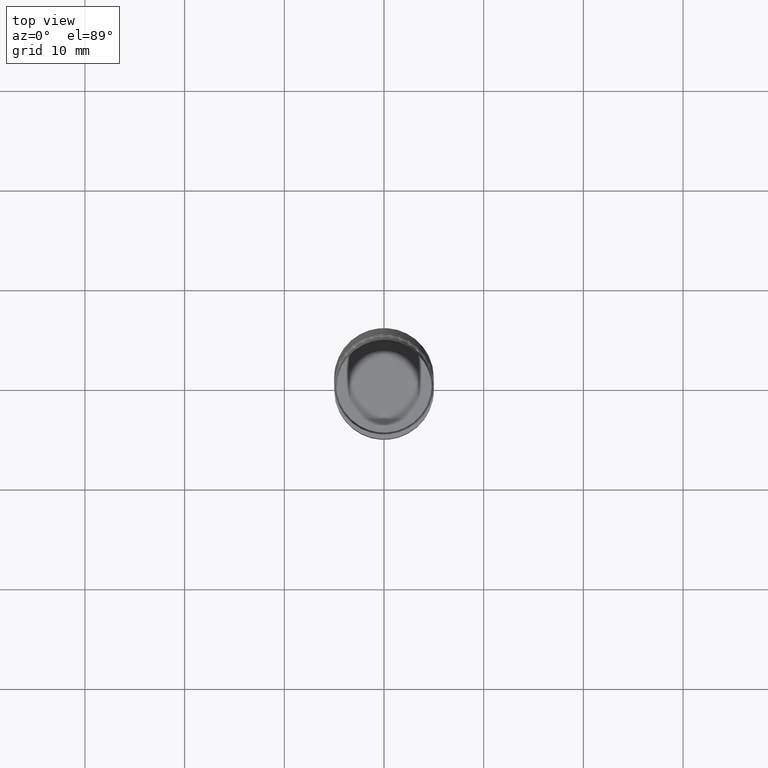
[diagram: clean part render]
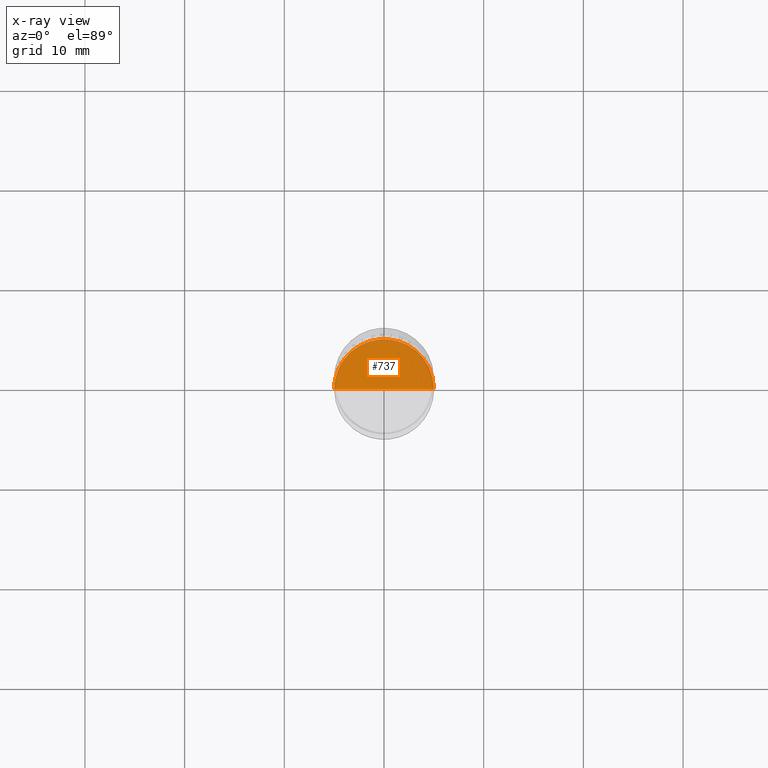
[diagram: x-ray — body ghosted, one internal face saturated and labeled with its STEP entity id]
A machine part, top view, then the same camera in x-ray: the body is ghosted and one INTERNAL B-rep face — a face not visible from any outside direction — is saturated and labeled: STEP entity #737.
In plain terms, the highlighted face is a freeform B-spline surface patch.
Its self-contained STEP definition (entity closure, byte-faithful):
#494=CARTESIAN_POINT('',(5.0,0.0,-26.746410161514));
#495=CARTESIAN_POINT('',(5.0,5.0,-26.746410161514));
#496=CARTESIAN_POINT('',(0.0,5.0,-26.746410161514));
#497=CARTESIAN_POINT('',(-5.0,5.0,-26.746410161514));
#498=CARTESIAN_POINT('',(-5.0,0.0,-26.746410161514));
#499=CARTESIAN_POINT('',(0.0,0.0,-26.746410161514));
#722=(
BOUNDED_SURFACE()
B_SPLINE_SURFACE(1,2,(
(#499,#499,#499,#499,#499),
(#494,#495,#496,#497,#498)
), .UNSPECIFIED.,.F.,.F.,.F.)
B_SPLINE_SURFACE_WITH_KNOTS((2,2),(3,2,3),(
0.0,1.0),(
0.0,0.5,1.0), .UNSPECIFIED.)
GEOMETRIC_REPRESENTATION_ITEM()
RATIONAL_B_SPLINE_SURFACE(((1.0,0.707106781187,1.0,0.707106781187,1.0),
(1.0,0.707106781187,1.0,0.707106781187,1.0)
))
REPRESENTATION_ITEM('')
SURFACE()
);
#723=(
BOUNDED_CURVE()
B_SPLINE_CURVE(1,(#498,#499),.UNSPECIFIED.,.F.,.F.)
B_SPLINE_CURVE_WITH_KNOTS((2,2),
(0.0,1.0),.UNSPECIFIED.)
CURVE()
GEOMETRIC_REPRESENTATION_ITEM()
RATIONAL_B_SPLINE_CURVE((1.0,1.0))
REPRESENTATION_ITEM('')
);
#724=(
BOUNDED_CURVE()
B_SPLINE_CURVE(1,(#499,#494),.UNSPECIFIED.,.F.,.F.)
B_SPLINE_CURVE_WITH_KNOTS((2,2),
(0.0,1.0),.UNSPECIFIED.)
CURVE()
GEOMETRIC_REPRESENTATION_ITEM()
RATIONAL_B_SPLINE_CURVE((1.0,1.0))
REPRESENTATION_ITEM('')
);
#725=(
BOUNDED_CURVE()
B_SPLINE_CURVE(2,(#494,#495,#496,#497,#498),.UNSPECIFIED.,.F.,.F.)
B_SPLINE_CURVE_WITH_KNOTS((3,2,3),
(0.0,0.5,1.0),.UNSPECIFIED.)
CURVE()
GEOMETRIC_REPRESENTATION_ITEM()
RATIONAL_B_SPLINE_CURVE((1.0,0.707106781187,1.0,0.707106781187,1.0))
REPRESENTATION_ITEM('')
);
#726=VERTEX_POINT('',#494);
#727=VERTEX_POINT('',#498);
#728=VERTEX_POINT('',#499);
#729=EDGE_CURVE('',#727,#728,#723,.T.);
#730=EDGE_CURVE('',#728,#726,#724,.T.);
#731=EDGE_CURVE('',#726,#727,#725,.T.);
#732=ORIENTED_EDGE('',*,*,#729,.T.);
#733=ORIENTED_EDGE('',*,*,#730,.T.);
#734=ORIENTED_EDGE('',*,*,#731,.T.);
#735=EDGE_LOOP('',(#732,#733,#734));
#736=FACE_OUTER_BOUND('',#735,.T.);
#737=ADVANCED_FACE('',(#736),#722,.T.);